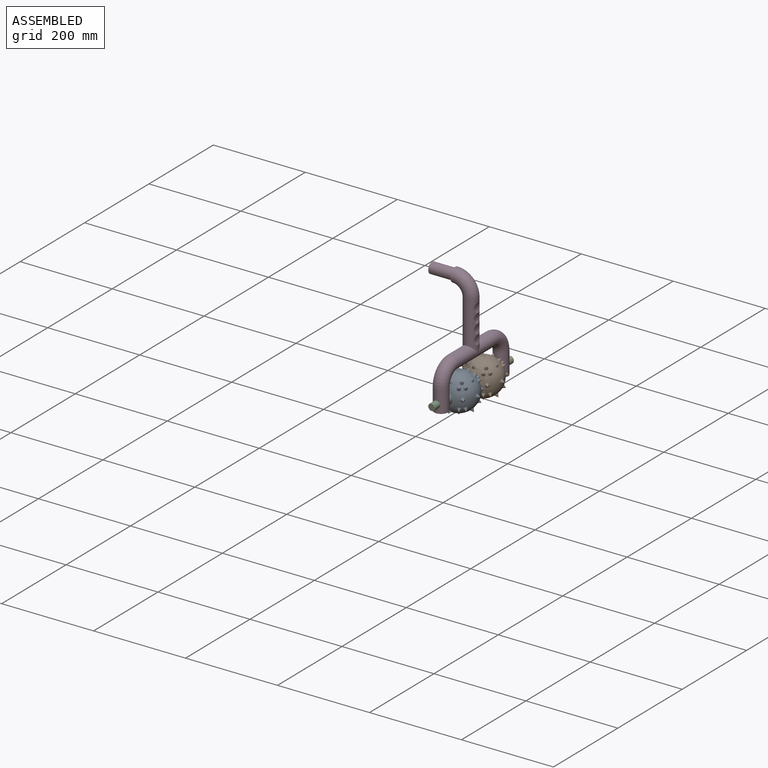
[diagram: assembled view]
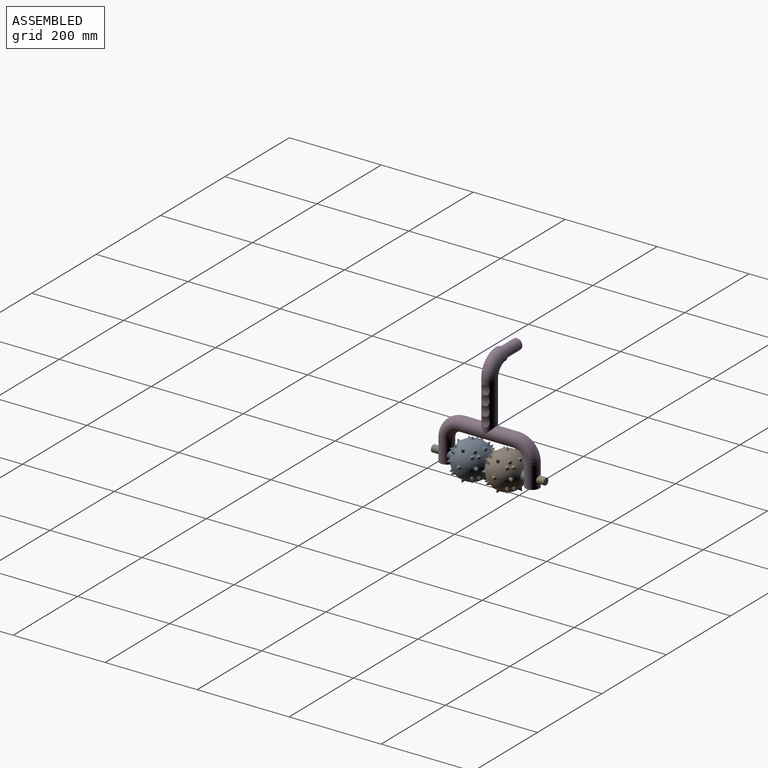
[diagram: assembled view, second angle]
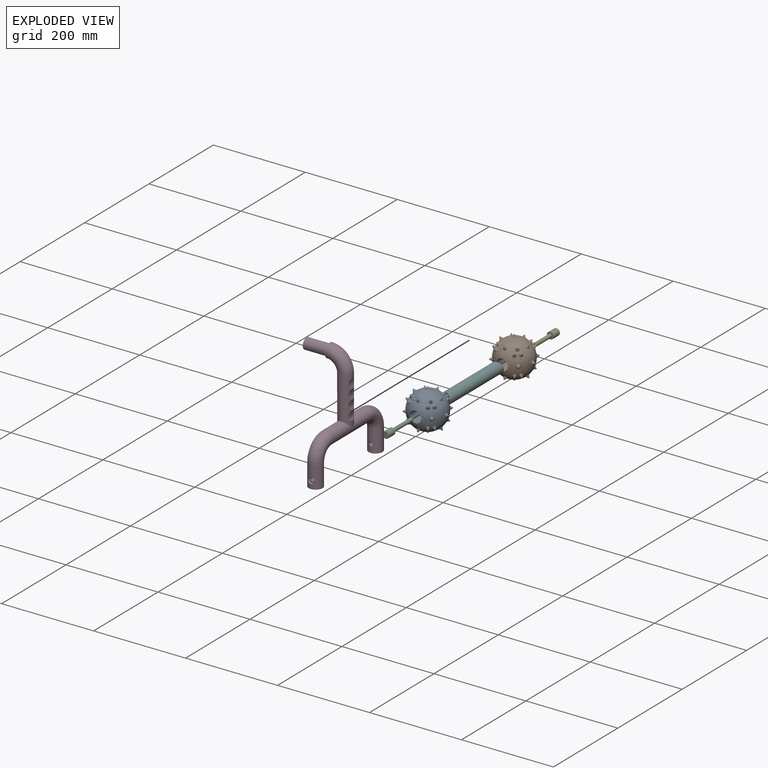
[diagram: exploded view]
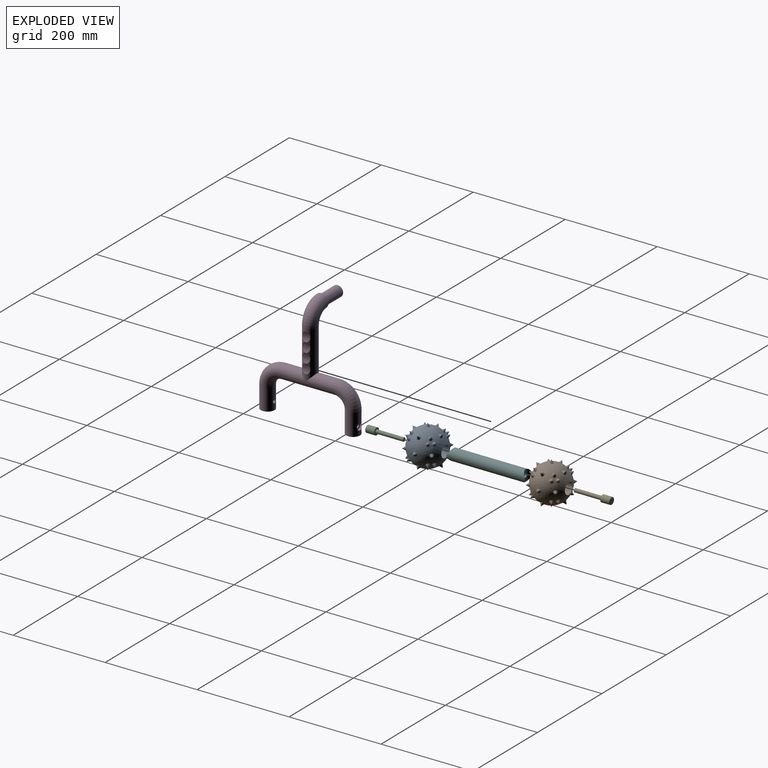
[diagram: exploded view, second angle]
ASSEMBLY  parts=6 mates=5
PART A: 38 faces, bbox 80x93.3x93.3 mm
  f0: sphere r=40mm, area 17169mm2, adj f1,f2,f3,f4,f5,f6,f7,f8
  f1: cone r=4.13mm half-angle=31deg, axis (0.5,-0.71,0.5), area 103.7mm2, adj f0
  f2: cylinder r=12.5mm len=75.99mm, axis (1,0,0), area 5968.5mm2, adj f0
  f3: cone r=4.13mm half-angle=31deg, axis (0.71,0.71,0), area 103.7mm2, adj f0
  f4: cone r=4.13mm half-angle=31deg, axis (0,0.71,0.71), area 103.7mm2, adj f0
  f5: cone r=4.13mm half-angle=31deg, axis (0,-1,0), area 103.7mm2, adj f0
  f6: cone r=4.13mm half-angle=31deg, axis (0.71,-0.5,0.5), area 103.7mm2, adj f0
  f7: cone r=4.13mm half-angle=31deg, axis (0,0,-1), area 103.7mm2, adj f0
  f8: cone r=4.13mm half-angle=31deg, axis (0,1,0), area 103.7mm2, adj f0
  f9: cone r=4.13mm half-angle=31deg, axis (0,-0.71,0.71), area 103.7mm2, adj f0
  f10: cone r=4.13mm half-angle=31deg, axis (0,0,1), area 103.7mm2, adj f0
  f11: cone r=4.13mm half-angle=31deg, axis (-0.5,0.71,-0.5), area 103.7mm2, adj f0
  f12: cone r=4.13mm half-angle=31deg, axis (-0.71,0,0.71), area 103.7mm2, adj f0
  f13: cone r=4.13mm half-angle=31deg, axis (0.5,-0.71,-0.5), area 103.7mm2, adj f0
  f14: cone r=4.13mm half-angle=31deg, axis (-0.5,0.71,0.5), area 103.7mm2, adj f0
  f15: cone r=4.13mm half-angle=31deg, axis (0.5,0.71,0.5), area 103.7mm2, adj f0
  f16: cone r=4.13mm half-angle=31deg, axis (0.5,-0.5,-0.71), area 103.7mm2, adj f0
  f17: cone r=4.13mm half-angle=31deg, axis (0.71,0,-0.71), area 103.7mm2, adj f0
  f18: cone r=4.13mm half-angle=31deg, axis (-0.5,-0.5,-0.71), area 103.7mm2, adj f0
  f19: cone r=4.13mm half-angle=31deg, axis (0,0.71,-0.71), area 103.7mm2, adj f0
  f20: cone r=4.13mm half-angle=31deg, axis (0.71,0,0.71), area 103.7mm2, adj f0
  f21: cone r=4.13mm half-angle=31deg, axis (0.5,0.5,-0.71), area 103.7mm2, adj f0
  f22: cone r=4.13mm half-angle=31deg, axis (-0.71,0,-0.71), area 103.7mm2, adj f0
  f23: cone r=4.13mm half-angle=31deg, axis (-0.5,0.5,-0.71), area 103.7mm2, adj f0
  f24: cone r=4.13mm half-angle=31deg, axis (0.5,0.71,-0.5), area 103.7mm2, adj f0
  f25: cone r=4.13mm half-angle=31deg, axis (-0.71,-0.5,-0.5), area 103.7mm2, adj f0
  f26: cone r=4.13mm half-angle=31deg, axis (-0.71,-0.5,0.5), area 103.7mm2, adj f0
  f27: cone r=4.13mm half-angle=31deg, axis (-0.71,0.5,0.5), area 103.7mm2, adj f0
  f28: cone r=4.13mm half-angle=31deg, axis (-0.71,0.5,-0.5), area 103.7mm2, adj f0
  f29: cone r=4.13mm half-angle=31deg, axis (-0.71,0.71,0), area 103.7mm2, adj f0
  f30: cone r=4.13mm half-angle=31deg, axis (0.71,-0.71,0), area 103.7mm2, adj f0
  f31: cone r=4.13mm half-angle=31deg, axis (-0.71,-0.71,0), area 103.7mm2, adj f0
  f32: cone r=4.13mm half-angle=31deg, axis (0,-0.71,-0.71), area 103.7mm2, adj f0
  f33: cone r=4.13mm half-angle=31deg, axis (0.71,-0.5,-0.5), area 103.7mm2, adj f0
  f34: cone r=4.13mm half-angle=31deg, axis (0.71,0.5,0.5), area 103.7mm2, adj f0
  f35: cone r=4.13mm half-angle=31deg, axis (-0.5,-0.71,-0.5), area 103.7mm2, adj f0
  f36: cone r=4.13mm half-angle=31deg, axis (-0.5,-0.71,0.5), area 103.7mm2, adj f0
  f37: cone r=4.13mm half-angle=31deg, axis (0.71,0.5,-0.5), area 103.7mm2, adj f0
PART B: same geometry as A
PART C: 6 faces, bbox 16.2x16.2x80 mm
  f0: cylinder r=7.5mm len=19mm, axis (0,0,-1), area 895.4mm2, adj f1,f5
  f1: plane 15x15mm, normal (0,0,1), area 126.4mm2, adj f0,f3
  f2: plane 13x13mm, normal (0,0,-1), area 132.7mm2, adj f5
  f3: cylinder r=4mm len=60mm, axis (0,0,-1), area 1508mm2, adj f1,f4
  f4: plane 8x8mm, normal (0,0,1), area 50.3mm2, adj f3
  f5: torus R=6.5mm, axis (0,0,1), area 70.4mm2, adj f0,f2
PART D: 22 faces, bbox 224.2x104.1x241.6 mm
  f0: cylinder r=15mm len=47.5mm, axis (0,0,1), area 4243.1mm2, adj f2,f4,f17,f21
  f1: cylinder r=4mm len=25mm, axis (1,0,0), area 621.5mm2, adj f7,f18
  f2: plane 30x30mm, normal (0,0,-1), area 706.9mm2, adj f0
  f3: plane 30x30mm, normal (0,0,-1), area 706.9mm2, adj f7
  f4: torus R=35mm, axis (0,1,0), area 5181.5mm2, adj f0,f5
  f5: cylinder r=15mm len=116mm, axis (1,0,0), area 10032.7mm2, adj f4,f6,f8
  f6: torus R=35mm, axis (0,1,0), area 5181.5mm2, adj f5,f7
  f7: cylinder r=15mm len=47.5mm, axis (0,0,-1), area 4243.2mm2, adj f1,f3,f6,f19
  f8: cylinder r=15mm len=105mm, axis (0,0,-1), area 7846.2mm2, adj f5,f9,f10,f11,f12,f14
  f9: cylinder r=20mm len=20mm, axis (1,0,0), area 284.2mm2, adj f8
  f10: cylinder r=20mm len=20mm, axis (1,0,0), area 284.2mm2, adj f8
  f11: cylinder r=20mm len=20mm, axis (1,0,0), area 284.2mm2, adj f8
  f12: cylinder r=20mm len=20mm, axis (1,0,0), area 284.2mm2, adj f8
  f13: plane 30x30mm, normal (0,-1,0), area 273.1mm2, adj f14,f16
  f14: torus R=35mm, axis (1,0,0), area 5181.5mm2, adj f8,f13
  f15: plane 23.5x23.5mm, normal (0,-1,0), area 433.7mm2, adj f16
  f16: cylinder r=11.75mm len=50mm, axis (0,-1,0), area 3691.4mm2, adj f13,f15
  f17: cylinder r=4mm len=25mm, axis (1,0,0), area 621.5mm2, adj f0,f20
  f18: plane 15x15mm, normal (1,0,0), area 126.4mm2, adj f1,f19
  f19: cylinder r=7.5mm len=15mm, axis (1,0,0), area 189.1mm2, adj f7,f18
  f20: plane 15x15mm, normal (-1,0,0), area 126.4mm2, adj f17,f21
  f21: cylinder r=7.5mm len=15mm, axis (-1,0,0), area 189.1mm2, adj f0,f20
PART E: same geometry as C
PART F: 7 faces, bbox 169.4x25x25 mm
  f0: cylinder r=15mm len=25mm, axis (0,0,-1), area 501.3mm2, adj f1,f5
  f1: cylinder r=12.5mm len=169.42mm, axis (-1,0,0), area 12740.8mm2, adj f0,f2
  f2: cylinder r=15mm len=25mm, axis (0,0,-1), area 501.3mm2, adj f1,f3
  f3: cylinder r=4mm len=35.54mm, axis (1,0,0), area 886.4mm2, adj f2,f4
  f4: plane 8x8mm, normal (1,0,0), area 50.3mm2, adj f3
  f5: cylinder r=4mm len=35.54mm, axis (-1,0,0), area 886.4mm2, adj f0,f6
  f6: plane 8x8mm, normal (-1,0,0), area 50.3mm2, adj f5
PLACE A rot(axis=(0,0,1),90deg) t=(17.18,-90.05,4.92)mm
PLACE B rot(axis=(0,0,1),90deg) t=(17.18,-14.06,4.92)mm
PLACE C rot(axis=(-1,0,0),90deg) t=(17.18,-175.06,4.92)mm
PLACE D rot(axis=(0,0,-1),90deg) t=(17.18,-52.06,54.92)mm
PLACE E rot(axis=(1,0,0),90deg) t=(17.18,70.94,4.92)mm
PLACE F rot(axis=(0,0,1),90deg) t=(17.18,-52.06,4.92)mm
MATE planar E.f3 <-> D.f1  axis (0,1,0) through (17.18,50.94,4.92)mm
MATE planar B.f2 <-> F.f1  axis (0,1,0) through (17.18,-52.06,4.92)mm
MATE planar C.f3 <-> F.f3  axis (0,1,0) through (17.18,-95.06,4.92)mm
MATE planar A.f2 <-> F.f1  axis (0,1,0) through (17.18,-52.06,4.92)mm
MATE planar F.f3 <-> E.f3  axis (0,1,0) through (17.18,-9.06,4.92)mm
